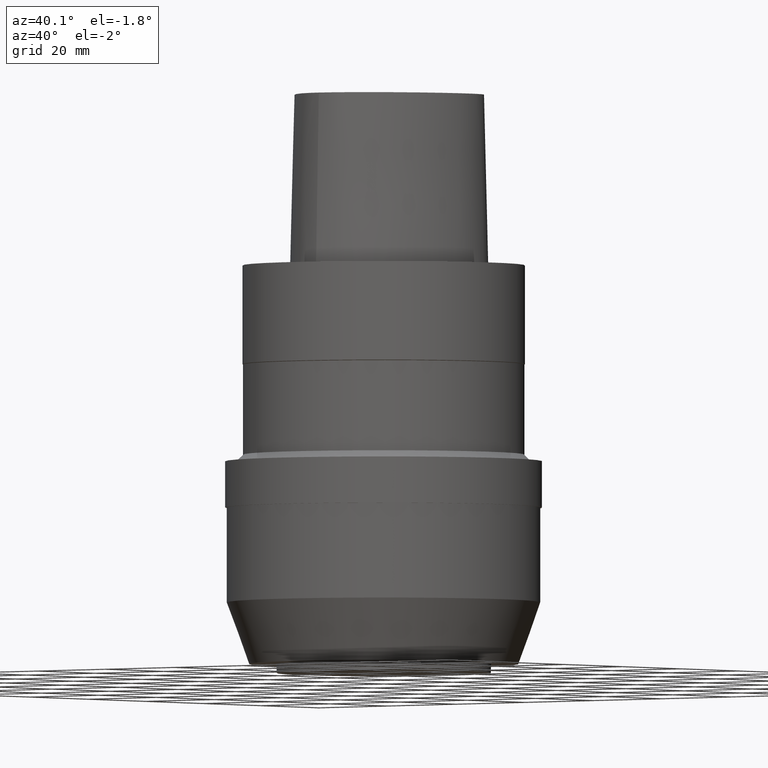
[diagram: clean part render]
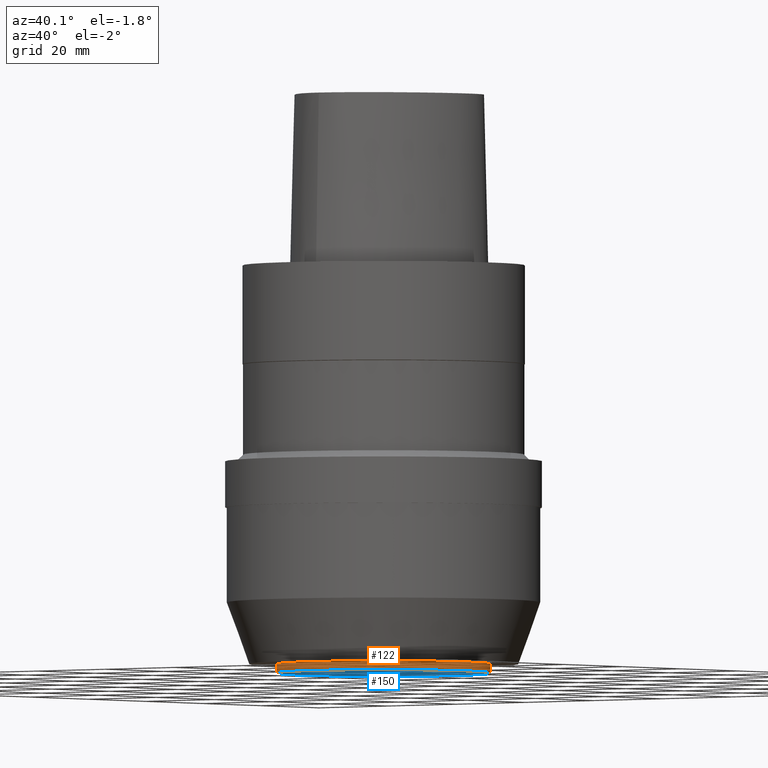
[diagram: same view with the hole feature highlighted: cylindrical wall and planar end face, labeled with their STEP entity ids]
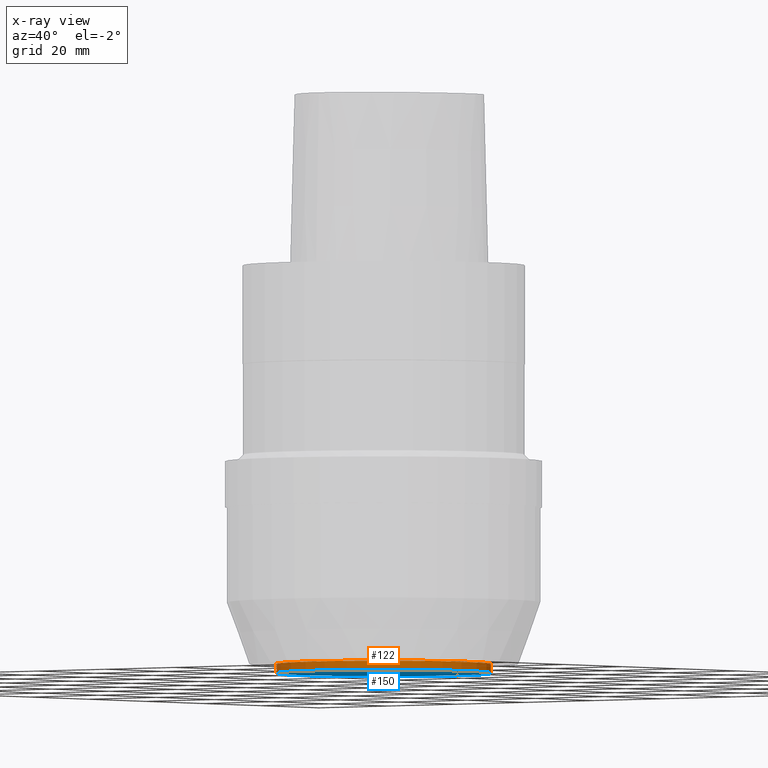
[diagram: x-ray of the same camera — body ghosted, the hole faces saturated]
A machine part, auxiliary view. The highlighted faces form one hole feature of diameter 47.82 mm: the cylindrical wall (entity #122, orange) and its adjacent planar end face (entity #150, blue) — they share a circular edge in the B-rep.
The next image is the same camera in x-ray (body ghosted, the hole faces saturated) — the bore reads through the body.
Wall:
#74=EDGE_CURVE('Unnamed[1]',#192,#192,#193,.T.);
#122=ADVANCED_FACE('Unnamed[1]',(#260,#261),#262,.T.);
#154=EDGE_CURVE('Unnamed[1]',#309,#309,#310,.T.);
#192=VERTEX_POINT('',#345);
#193=CIRCLE('',#346,23.9099999999941);
#260=FACE_BOUND('',#619,.T.);
#261=FACE_BOUND('',#620,.T.);
#262=CYLINDRICAL_SURFACE('',#621,23.9100000000177);
#309=VERTEX_POINT('',#696);
#310=CIRCLE('',#697,23.9100000000413);
#345=CARTESIAN_POINT('',(5.44355502220996E-015,23.9099999999942,-88.8999999999997));
#346=AXIS2_PLACEMENT_3D('',#718,#719,#720);
#619=EDGE_LOOP('',(#784));
#620=EDGE_LOOP('',(#785));
#621=AXIS2_PLACEMENT_3D('',#786,#787,#788);
#696=CARTESIAN_POINT('',(5.56601970212472E-015,23.9100000000414,-90.9000000000001));
#697=AXIS2_PLACEMENT_3D('',#841,#842,#843);
#718=CARTESIAN_POINT('',(5.44355502220996E-015,1.08871100444199E-014,-88.8999999999997));
#719=DIRECTION('',(6.12323399573677E-017,1.22464679914735E-016,-1.0));
#720=DIRECTION('',(-1.23259516440783E-032,1.0,1.22464679914735E-016));
#784=ORIENTED_EDGE('',*,*,#154,.F.);
#785=ORIENTED_EDGE('',*,*,#74,.T.);
#786=CARTESIAN_POINT('',(5.50478736216734E-015,1.10095747243347E-014,-89.8999999999999));
#787=DIRECTION('',(6.12323399573676E-017,1.22464679914735E-016,-1.0));
#788=DIRECTION('',(-1.23259516440783E-032,1.0,1.22464679914735E-016));
#841=CARTESIAN_POINT('',(5.56601970212472E-015,1.11320394042494E-014,-90.9000000000001));
#842=DIRECTION('',(6.12323399573677E-017,1.22464679914735E-016,-1.0));
#843=DIRECTION('',(-1.23259516440783E-032,1.0,1.22464679914735E-016));
End face:
#150=ADVANCED_FACE('Unnamed[1]',(#304),#305,.T.);
#154=EDGE_CURVE('Unnamed[1]',#309,#309,#310,.T.);
#304=FACE_OUTER_BOUND('',#689,.T.);
#305=PLANE('',#690);
#309=VERTEX_POINT('',#696);
#310=CIRCLE('',#697,23.9100000000413);
#689=EDGE_LOOP('',(#834));
#690=AXIS2_PLACEMENT_3D('',#835,#836,#837);
#696=CARTESIAN_POINT('',(5.56601970212472E-015,23.9100000000414,-90.9000000000001));
#697=AXIS2_PLACEMENT_3D('',#841,#842,#843);
#834=ORIENTED_EDGE('',*,*,#154,.T.);
#835=CARTESIAN_POINT('',(5.56601970212472E-015,11.9550000000207,-90.9));
#836=DIRECTION('',(6.12323399573677E-017,-2.25492632220612E-015,-1.0));
#837=DIRECTION('',(1.33247262409373E-031,1.0,-2.25492632220612E-015));
#841=CARTESIAN_POINT('',(5.56601970212472E-015,1.11320394042494E-014,-90.9000000000001));
#842=DIRECTION('',(6.12323399573677E-017,1.22464679914735E-016,-1.0));
#843=DIRECTION('',(-1.23259516440783E-032,1.0,1.22464679914735E-016));